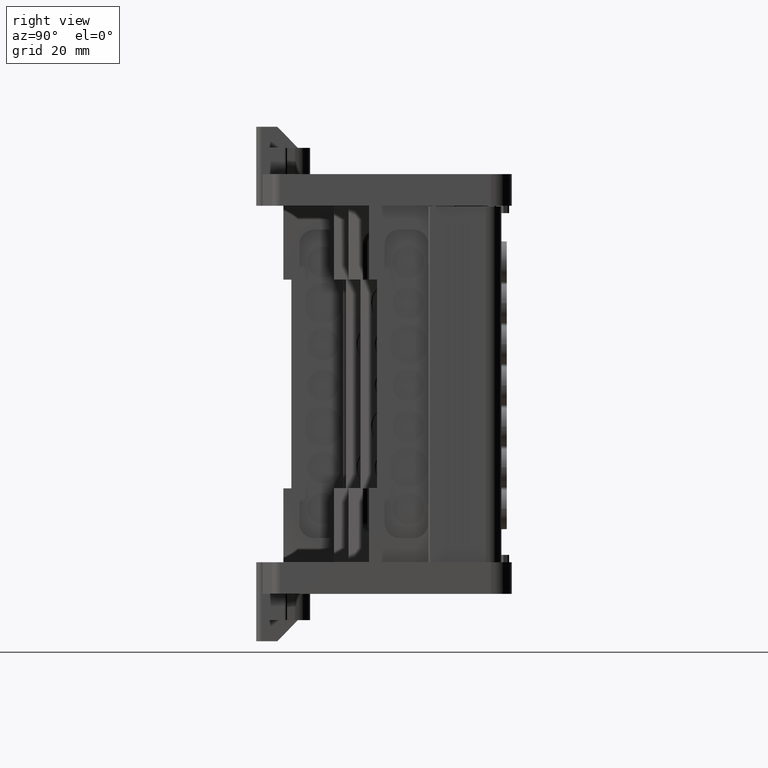
[diagram: clean part render]
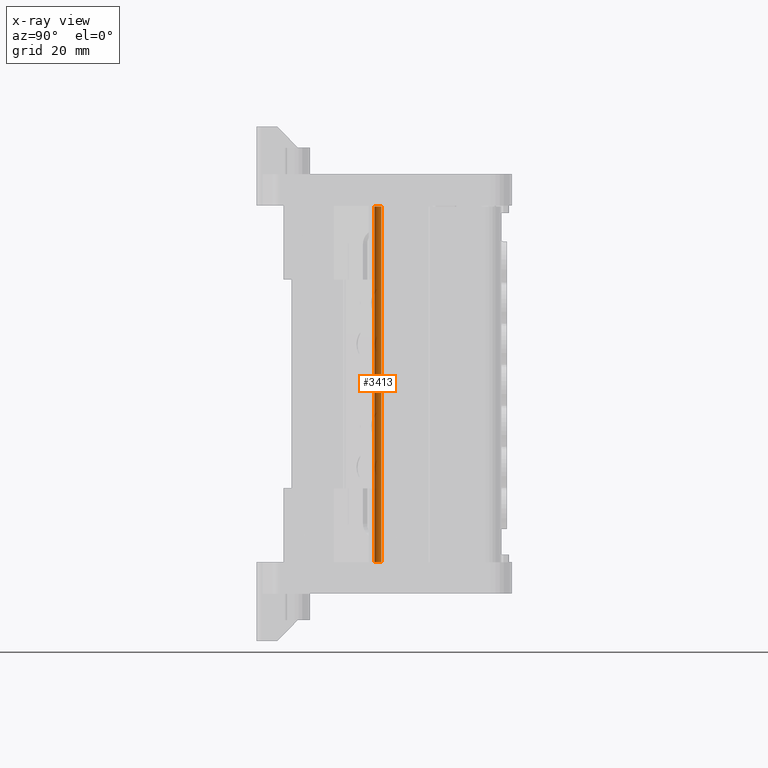
[diagram: x-ray — body ghosted, one internal face saturated and labeled with its STEP entity id]
A machine part, right view, then the same camera in x-ray: the body is ghosted and one INTERNAL B-rep face — a face not visible from any outside direction — is saturated and labeled: STEP entity #3413.
In plain terms, the highlighted cylindrical surface (edge-blend (fillet) strip) has radius 0.9996 mm, axis along (-0, -0, -1).
Its self-contained STEP definition (entity closure, byte-faithful):
#3413 = ADVANCED_FACE ( 'NONE', ( #52076 ), #52065, .T. ) ;
#18220 = EDGE_CURVE ( 'NONE', #89836, #90802, #45542, .T. ) ;
#18604 = EDGE_CURVE ( 'NONE', #80663, #89836, #49456, .T. ) ;
#18620 = EDGE_CURVE ( 'NONE', #90855, #80663, #49995, .T. ) ;
#18783 = EDGE_CURVE ( 'NONE', #90802, #90855, #47749, .T. ) ;
#36939 = VECTOR ( 'NONE', #45550, 1000.000000000000000 ) ;
#43664 = AXIS2_PLACEMENT_3D ( 'NONE', #52086, #52043, #52045 ) ;
#45542 = LINE ( 'NONE', #45549, #36939 ) ;
#45549 = CARTESIAN_POINT ( 'NONE',  ( 368.9057519962368600, -94.37627647890882100, 134.3541231511085500 ) ) ;
#45550 = DIRECTION ( 'NONE',  ( -2.670878784693751500E-014, -7.311159212061145000E-014, -1.000000000000000000 ) ) ;
#47749 = CIRCLE ( 'NONE', #47769, 0.9996212121126113500 ) ;
#47769 = AXIS2_PLACEMENT_3D ( 'NONE', #50505, #50516, #50483 ) ;
#49456 = CIRCLE ( 'NONE', #49491, 0.9996212121126113500 ) ;
#49491 = AXIS2_PLACEMENT_3D ( 'NONE', #49951, #49946, #49941 ) ;
#49506 = VECTOR ( 'NONE', #49976, 1000.000000000000000 ) ;
#49941 = DIRECTION ( 'NONE',  ( 0.0000000000000000000, 1.000000000000000000, -6.941523268841491400E-014 ) ) ;
#49946 = DIRECTION ( 'NONE',  ( -2.670878784693751500E-014, -7.311159212061145000E-014, -1.000000000000000000 ) ) ;
#49951 = CARTESIAN_POINT ( 'NONE',  ( 369.8117164848604800, -94.79873465797393800, 96.12882012113924200 ) ) ;
#49976 = DIRECTION ( 'NONE',  ( 3.277371941038647800E-014, 7.028346808638827000E-014, 1.000000000000000000 ) ) ;
#49995 = LINE ( 'NONE', #49997, #49506 ) ;
#49997 = CARTESIAN_POINT ( 'NONE',  ( 369.3892583057951800, -95.70469914660476700, 27.59457769748292900 ) ) ;
#50483 = DIRECTION ( 'NONE',  ( 0.0000000000000000000, 1.000000000000000000, -7.288599432283566600E-014 ) ) ;
#50505 = CARTESIAN_POINT ( 'NONE',  ( 369.8117164848586600, -94.79873465797886900, 28.59460800001209400 ) ) ;
#50516 = DIRECTION ( 'NONE',  ( 2.670878784693751500E-014, 7.311159212061145000E-014, 1.000000000000000000 ) ) ;
#52043 = DIRECTION ( 'NONE',  ( -2.670878784693751500E-014, -7.311159212061145000E-014, -1.000000000000000000 ) ) ;
#52045 = DIRECTION ( 'NONE',  ( 0.0000000000000000000, 1.000000000000000000, -8.329827922609790700E-014 ) ) ;
#52065 = CYLINDRICAL_SURFACE ( 'NONE', #43664, 0.9996212121126113500 ) ;
#52076 = FACE_OUTER_BOUND ( 'NONE', #79712, .T. ) ;
#52086 = CARTESIAN_POINT ( 'NONE',  ( 369.8117164848615100, -94.79873465797113900, 134.3541231511085500 ) ) ;
#57442 = ORIENTED_EDGE ( 'NONE', *, *, #18220, .T. ) ;
#57479 = ORIENTED_EDGE ( 'NONE', *, *, #18783, .T. ) ;
#57546 = ORIENTED_EDGE ( 'NONE', *, *, #18620, .T. ) ;
#57548 = ORIENTED_EDGE ( 'NONE', *, *, #18604, .T. ) ;
#70886 = CARTESIAN_POINT ( 'NONE',  ( 368.9057519962361200, -94.37627647891172000, 96.12882012113924200 ) ) ;
#72022 = CARTESIAN_POINT ( 'NONE',  ( 369.3892583057975100, -95.70469914659999200, 96.12882012113932700 ) ) ;
#73549 = CARTESIAN_POINT ( 'NONE',  ( 368.9057519962342400, -94.37627647891666500, 28.59460800001209100 ) ) ;
#73788 = CARTESIAN_POINT ( 'NONE',  ( 369.3892583057954700, -95.70469914660436900, 28.59460800001217300 ) ) ;
#79712 = EDGE_LOOP ( 'NONE', ( #57479, #57546, #57548, #57442 ) ) ;
#80663 = VERTEX_POINT ( 'NONE', #72022 ) ;
#89836 = VERTEX_POINT ( 'NONE', #70886 ) ;
#90802 = VERTEX_POINT ( 'NONE', #73549 ) ;
#90855 = VERTEX_POINT ( 'NONE', #73788 ) ;